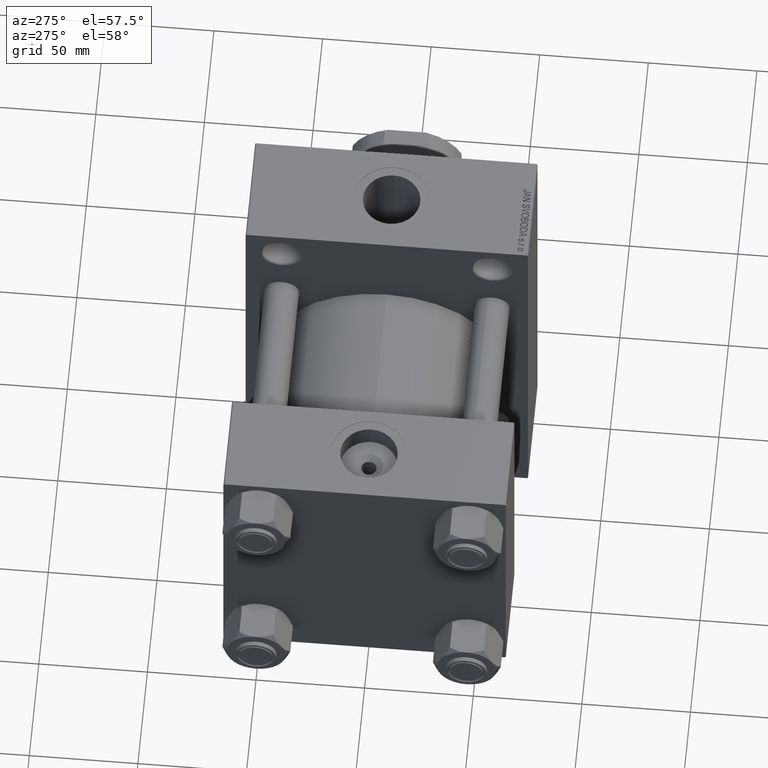
[diagram: clean part render]
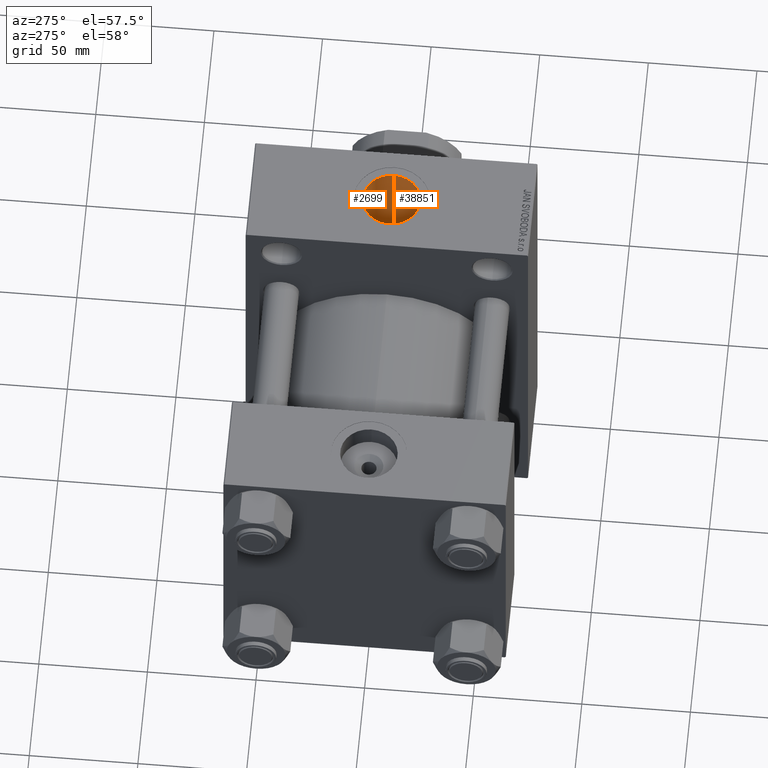
[diagram: same view with one multi-face feature highlighted, each face labeled with its STEP entity id]
A machine part, auxiliary view. The highlighted faces form ONE feature: a constant-radius fillet chain: 2 tangent blend faces with common blend radius 13.22 mm. The faces share edges in the B-rep.
Their STEP definitions:
[1] entity #2699 (Cylinder):
#408 = ORIENTED_EDGE ( 'NONE', *, *, #47506, .F. ) ;
#657 = AXIS2_PLACEMENT_3D ( 'NONE', #33542, #19065, #29922 ) ;
#1185 = EDGE_CURVE ( 'NONE', #42213, #16137, #18667, .T. ) ;
#1547 = DIRECTION ( 'NONE',  ( 0.000000000000000000, 0.000000000000000000, -1.000000000000000000 ) ) ;
#2699 = ADVANCED_FACE ( 'NONE', ( #29906 ), #41729, .F. ) ;
#2850 = VECTOR ( 'NONE', #21337, 1000.000000000000000 ) ;
#3137 = VERTEX_POINT ( 'NONE', #45951 ) ;
#3337 = CARTESIAN_POINT ( 'NONE',  ( 134.4737087384339986, 10.88020985411995767, 36.41044846182738581 ) ) ;
#3481 = CARTESIAN_POINT ( 'NONE',  ( 155.2199999999999704, 1.618983068472802926E-15, 94.79999999999996874 ) ) ;
#5032 = DIRECTION ( 'NONE',  ( -1.000000000000000000, 0.000000000000000000, 0.000000000000000000 ) ) ;
#5071 = ORIENTED_EDGE ( 'NONE', *, *, #1185, .T. ) ;
#5685 = CARTESIAN_POINT ( 'NONE',  ( 150.9292914793963973, 9.754948885942500425, 41.62290027704880657 ) ) ;
#6018 = CARTESIAN_POINT ( 'NONE',  ( 129.3778971728957856, 4.062892629112896614, 37.79548799711346874 ) ) ;
#6159 = VERTEX_POINT ( 'NONE', #34579 ) ;
#6484 = CARTESIAN_POINT ( 'NONE',  ( 140.1279962358461546, 13.09681056689220569, 35.67188185037126402 ) ) ;
#6659 = AXIS2_PLACEMENT_3D ( 'NONE', #15902, #8433, #5032 ) ;
#7498 = EDGE_CURVE ( 'NONE', #6159, #3137, #46190, .T. ) ;
#8433 = DIRECTION ( 'NONE',  ( 0.000000000000000000, 0.000000000000000000, -1.000000000000000000 ) ) ;
#9273 = ORIENTED_EDGE ( 'NONE', *, *, #25704, .T. ) ;
#9314 = CARTESIAN_POINT ( 'NONE',  ( 148.9652939437245038, 11.25862793121221017, 41.24295429618411646 ) ) ;
#10118 = CARTESIAN_POINT ( 'NONE',  ( 138.6161393418148293, 12.82059544320183164, 35.77248578963132530 ) ) ;
#10354 = CARTESIAN_POINT ( 'NONE',  ( 143.7262910150043353, 13.11687709635734578, 35.66449319161085185 ) ) ;
#10494 = CARTESIAN_POINT ( 'NONE',  ( 155.2199999999999704, 5.235365066362932155E-15, 42.75000000000000000 ) ) ;
#10587 = CARTESIAN_POINT ( 'NONE',  ( 129.7276034401946561, 5.021107990086661310, 37.67826336039709645 ) ) ;
#10650 = VECTOR ( 'NONE', #1547, 1000.000000000000000 ) ;
#10886 = EDGE_CURVE ( 'NONE', #6159, #14940, #46499, .T. ) ;
#11425 = VECTOR ( 'NONE', #40182, 1000.000000000000000 ) ;
#12936 = CARTESIAN_POINT ( 'NONE',  ( 147.0879043388672471, 12.22198265844279952, 40.96689205292911140 ) ) ;
#13497 = CARTESIAN_POINT ( 'NONE',  ( 131.5365498440031331, 8.095730104901400992, 37.12974234449202271 ) ) ;
#13592 = CARTESIAN_POINT ( 'NONE',  ( 128.7799999999999443, 0.000000000000000000, 94.79999999999996874 ) ) ;
#13977 = CARTESIAN_POINT ( 'NONE',  ( 131.2346256052195201, 7.689782515989664446, 37.21631209127710349 ) ) ;
#14125 = CARTESIAN_POINT ( 'NONE',  ( 153.3681678082568851, 6.757087634520164698, 42.21369697903652707 ) ) ;
#14128 = CARTESIAN_POINT ( 'NONE',  ( 155.2199999999999704, 1.618983068472802532E-15, 117.7999999999999545 ) ) ;
#14447 = CARTESIAN_POINT ( 'NONE',  ( 143.2169889944972567, 13.17384767058950779, 35.64338070116271240 ) ) ;
#14940 = VERTEX_POINT ( 'NONE', #44027 ) ;
#15902 = CARTESIAN_POINT ( 'NONE',  ( 141.9999999999999716, 0.000000000000000000, 117.7999999999999545 ) ) ;
#16137 = VERTEX_POINT ( 'NONE', #38928 ) ;
#17117 = CARTESIAN_POINT ( 'NONE',  ( 140.6429904835856917, 13.16039151796706719, 35.64835659901556397 ) ) ;
#17589 = CARTESIAN_POINT ( 'NONE',  ( 137.6411868225753494, 12.52307552529215151, 35.87982703132361451 ) ) ;
#17741 = CARTESIAN_POINT ( 'NONE',  ( 154.0344437705743417, 5.516867045286189430, 42.39720841868734169 ) ) ;
#18055 = CARTESIAN_POINT ( 'NONE',  ( 128.8096871343878718, 1.024765291550090662, 37.98964051294834832 ) ) ;
#18667 = LINE ( 'NONE', #37006, #2850 ) ;
#19065 = DIRECTION ( 'NONE',  ( -0.000000000000000000, -0.000000000000000000, -1.000000000000000000 ) ) ;
#19243 = ORIENTED_EDGE ( 'NONE', *, *, #7498, .F. ) ;
#20406 = CARTESIAN_POINT ( 'NONE',  ( 151.6858958810278750, 9.024595134817783304, 41.78957529832796780 ) ) ;
#21202 = CARTESIAN_POINT ( 'NONE',  ( 133.6646875080168400, 10.27358711865540997, 36.58624237847440241 ) ) ;
#21337 = DIRECTION ( 'NONE',  ( 0.000000000000000000, 0.000000000000000000, -1.000000000000000000 ) ) ;
#21354 = CARTESIAN_POINT ( 'NONE',  ( 154.9920876238891481, 2.469797748352711597, 42.68003640910877294 ) ) ;
#21446 = CARTESIAN_POINT ( 'NONE',  ( 128.9296438586279976, 2.049460351701848371, 37.94815730009316468 ) ) ;
#21604 = LINE ( 'NONE', #14128, #11425 ) ;
#21683 = CARTESIAN_POINT ( 'NONE',  ( 136.2275989359077926, 11.90429981927679925, 36.08787882260792657 ) ) ;
#22376 = EDGE_CURVE ( 'NONE', #22396, #14940, #21604, .T. ) ;
#22396 = VERTEX_POINT ( 'NONE', #3481 ) ;
#22735 = EDGE_LOOP ( 'NONE', ( #46233, #408, #5071, #9273, #19243, #43387 ) ) ;
#24038 = CARTESIAN_POINT ( 'NONE',  ( 149.8392309499369333, 10.65085741936020902, 41.40248309854266040 ) ) ;
#24832 = CARTESIAN_POINT ( 'NONE',  ( 128.7799999999999727, 0.5123942091390777387, 38.00000000000000711 ) ) ;
#25064 = CARTESIAN_POINT ( 'NONE',  ( 144.7394249595122631, 12.94326451559380331, 35.72786647778972480 ) ) ;
#25304 = CARTESIAN_POINT ( 'NONE',  ( 130.6766881679797336, 6.841684745575792093, 37.38151937335765496 ) ) ;
#25704 = EDGE_CURVE ( 'NONE', #16137, #3137, #41481, .T. ) ;
#27657 = CARTESIAN_POINT ( 'NONE',  ( 148.3566742675306500, 11.61276551564071902, 41.14373320031093328 ) ) ;
#28207 = CARTESIAN_POINT ( 'NONE',  ( 129.0207089073833799, 2.563288280031346122, 37.91676483506162754 ) ) ;
#28456 = CARTESIAN_POINT ( 'NONE',  ( 132.1862536335408720, 8.872148406854307723, 36.95190922194040439 ) ) ;
#28681 = CARTESIAN_POINT ( 'NONE',  ( 134.8947888654770679, 11.15982616624254398, 36.32533863211518366 ) ) ;
#28824 = CARTESIAN_POINT ( 'NONE',  ( 154.6496243838042233, 3.857681275829317968, 42.57693607211754738 ) ) ;
#29161 = CARTESIAN_POINT ( 'NONE',  ( 145.7399999999999807, 12.67993690836039455, 35.82204907595320265 ) ) ;
#29314 = CARTESIAN_POINT ( 'NONE',  ( 154.7498696806300700, 3.512400709947654853, 42.60688462453908443 ) ) ;
#29906 = FACE_OUTER_BOUND ( 'NONE', #22735, .T. ) ;
#29922 = DIRECTION ( 'NONE',  ( 1.000000000000000000, 0.000000000000000000, 0.000000000000000000 ) ) ;
#31271 = CARTESIAN_POINT ( 'NONE',  ( 145.7399999999999807, 12.67993690836039455, 40.82623788692756506 ) ) ;
#32320 = CARTESIAN_POINT ( 'NONE',  ( 141.6781624700284397, 13.22625420661950812, 35.62397272594166253 ) ) ;
#33542 = CARTESIAN_POINT ( 'NONE',  ( 141.9999999999999716, 0.000000000000000000, 94.79999999999996874 ) ) ;
#34579 = CARTESIAN_POINT ( 'NONE',  ( 145.7399999999999807, 12.67993690836039455, 40.82623788692756506 ) ) ;
#35071 = CARTESIAN_POINT ( 'NONE',  ( 145.7399999999999807, 12.67993690836039455, 117.7999999999999545 ) ) ;
#35131 = CARTESIAN_POINT ( 'NONE',  ( 152.1508856579517044, 8.498775455946677937, 41.90066282866281000 ) ) ;
#35923 = CARTESIAN_POINT ( 'NONE',  ( 128.7799999999999443, 4.670198144118042837E-15, 38.00000000000000000 ) ) ;
#36550 = CARTESIAN_POINT ( 'NONE',  ( 153.5441554628929453, 6.451719876449954150, 42.26153051605047040 ) ) ;
#37006 = CARTESIAN_POINT ( 'NONE',  ( 128.7799999999999443, 0.000000000000000000, 117.7999999999999545 ) ) ;
#38762 = CARTESIAN_POINT ( 'NONE',  ( 150.1227174788365915, 10.43618952212770878, 41.45722565518244807 ) ) ;
#38928 = CARTESIAN_POINT ( 'NONE',  ( 128.7799999999999443, 4.670198144118042837E-15, 38.00000000000000000 ) ) ;
#39558 = CARTESIAN_POINT ( 'NONE',  ( 130.4196655872703730, 6.397496821543482426, 37.46048315550975616 ) ) ;
#39784 = CARTESIAN_POINT ( 'NONE',  ( 145.2465992284542438, 12.82546751304065857, 35.77053558263883559 ) ) ;
#39945 = CARTESIAN_POINT ( 'NONE',  ( 152.7881170177278420, 7.649199120474212243, 42.06109021706770790 ) ) ;
#40032 = CARTESIAN_POINT ( 'NONE',  ( 133.2767444913754957, 9.946585948839686608, 36.67693463411972488 ) ) ;
#40182 = DIRECTION ( 'NONE',  ( 0.000000000000000000, 0.000000000000000000, -1.000000000000000000 ) ) ;
#41481 = B_SPLINE_CURVE_WITH_KNOTS ( 'NONE', 3,
 ( #35923, #24832, #18055, #21446, #28207, #6018, #10587, #39558, #25304, #13977, #13497, #28456, #43898, #40032, #21202, #3337, #28681, #43190, #21683, #17589, #10118, #6484, #17117, #32320, #43419, #14447, #10354, #25064, #39784, #29161 ),
 .UNSPECIFIED., .F., .F.,
 ( 4, 2, 2, 2, 2, 2, 2, 2, 2, 2, 2, 2, 2, 2, 4 ),
 ( 0.04166013637941434755, 0.04319771166362023490, 0.04473528694782612225, 0.04781043751623789695, 0.04934801280044379124, 0.05088558808464967859, 0.05242316336885556594, 0.05396073865306146022, 0.05549831393726734757, 0.05703588922147323492, 0.06011103978988502350, 0.06164861507409091085, 0.06318619035829679820, 0.06472376564250269249, 0.06626134092670858677 ),
 .UNSPECIFIED. ) ;
#41729 = CYLINDRICAL_SURFACE ( 'NONE', #6659, 13.22000000000000952 ) ;
#42213 = VERTEX_POINT ( 'NONE', #13592 ) ;
#43190 = CARTESIAN_POINT ( 'NONE',  ( 135.7708974169248677, 11.67150488739251024, 36.16418007451797223 ) ) ;
#43387 = ORIENTED_EDGE ( 'NONE', *, *, #10886, .T. ) ;
#43419 = CARTESIAN_POINT ( 'NONE',  ( 142.1929245059119467, 13.22853373566559654, 35.62312093936006363 ) ) ;
#43560 = CARTESIAN_POINT ( 'NONE',  ( 154.9210219195441027, 2.818391061395469244, 42.65841356615450053 ) ) ;
#43898 = CARTESIAN_POINT ( 'NONE',  ( 132.5346530381057732, 9.243211865870184951, 36.86048209934024555 ) ) ;
#44027 = CARTESIAN_POINT ( 'NONE',  ( 155.2199999999999704, 5.235365066362932155E-15, 42.75000000000000000 ) ) ;
#44044 = CARTESIAN_POINT ( 'NONE',  ( 155.1627215507658093, 1.419340817186896642, 42.73218467206118021 ) ) ;
#45951 = CARTESIAN_POINT ( 'NONE',  ( 145.7399999999999807, 12.67993690836039455, 35.82204907595320265 ) ) ;
#46006 = CARTESIAN_POINT ( 'NONE',  ( 146.4277657072452428, 12.47707755947820374, 40.88924255936937868 ) ) ;
#46190 = LINE ( 'NONE', #35071, #10650 ) ;
#46233 = ORIENTED_EDGE ( 'NONE', *, *, #22376, .F. ) ;
#46250 = CARTESIAN_POINT ( 'NONE',  ( 150.6671844818738180, 9.988618730331612738, 41.56733220482829694 ) ) ;
#46499 = B_SPLINE_CURVE_WITH_KNOTS ( 'NONE', 3,
 ( #31271, #46006, #12936, #27657, #9314, #24038, #38762, #46250, #5685, #20406, #35131, #39945, #47419, #14125, #36550, #17741, #47665, #28824, #29314, #43560, #21354, #44044, #47191, #10494 ),
 .UNSPECIFIED., .F., .F.,
 ( 4, 2, 2, 2, 2, 2, 2, 2, 2, 2, 2, 4 ),
 ( 0.000000000000000000, 0.002127714298774668368, 0.004255428597549336736, 0.005319285746936637527, 0.006383142896323938317, 0.008510857195098543368, 0.009574714344485873649, 0.01063857149387320566, 0.01276628579264786796, 0.01383014294203519998, 0.01489400009142253199, 0.01702171439019718388 ),
 .UNSPECIFIED. ) ;
#46907 = CIRCLE ( 'NONE', #657, 13.22000000000000952 ) ;
#47191 = CARTESIAN_POINT ( 'NONE',  ( 155.2199999999999989, 0.7128280605864664166, 42.75000000000000000 ) ) ;
#47419 = CARTESIAN_POINT ( 'NONE',  ( 152.9906410470005085, 7.355221410213304445, 42.11359832578121853 ) ) ;
#47506 = EDGE_CURVE ( 'NONE', #42213, #22396, #46907, .T. ) ;
#47665 = CARTESIAN_POINT ( 'NONE',  ( 154.3113288498327051, 4.868756459318224650, 42.47724650916214273 ) ) ;
[2] entity #38851 (Cylinder):
#521 = CARTESIAN_POINT ( 'NONE',  ( 138.6246063200816820, -12.79204261344252558, 35.78252008287734753 ) ) ;
#1004 = CARTESIAN_POINT ( 'NONE',  ( 135.7505307718750203, -11.69499031497651487, 36.15822628461805266 ) ) ;
#1185 = EDGE_CURVE ( 'NONE', #42213, #16137, #18667, .T. ) ;
#1478 = CARTESIAN_POINT ( 'NONE',  ( 146.4263400167578766, -12.47749807280259127, 40.88911195506444329 ) ) ;
#1709 = CARTESIAN_POINT ( 'NONE',  ( 155.1474619350561568, -1.428652546488348607, 42.72761509841833316 ) ) ;
#1939 = CARTESIAN_POINT ( 'NONE',  ( 154.9325276923766239, -2.832175481623198987, 42.66183901135579504 ) ) ;
#2850 = VECTOR ( 'NONE', #21337, 1000.000000000000000 ) ;
#3058 = B_SPLINE_CURVE_WITH_KNOTS ( 'NONE', 3,
 ( #17916, #7056, #21775, #18148, #29262, #46905, #47607, #14549, #43990, #10923, #25628, #22726, #521, #36971, #11394, #1004, #15734, #36727, #29719, #30442, #37443, #29973, #11633, #44457, #45176, #37695, #19115, #30212, #4381, #26834, #8249, #44709 ),
 .UNSPECIFIED., .F., .F.,
 ( 4, 2, 2, 2, 2, 2, 2, 2, 2, 2, 2, 2, 2, 2, 2, 4 ),
 ( 0.01705422015311720482, 0.01859208991726086016, 0.02012995968140451203, 0.02166782944554816737, 0.02243676432761999504, 0.02320569920969182270, 0.02474356897383539478, 0.02628143873797896685, 0.02935717826626604160, 0.03089504803040957898, 0.03243291779455311635, 0.03397078755869664679, 0.03550865732284018417, 0.03858439685112725892, 0.04012226661527080324, 0.04166013637941434755 ),
 .UNSPECIFIED. ) ;
#3481 = CARTESIAN_POINT ( 'NONE',  ( 155.2199999999999704, 1.618983068472802926E-15, 94.79999999999996874 ) ) ;
#4352 = EDGE_LOOP ( 'NONE', ( #9287, #12001, #8721, #43542, #35347, #5948 ) ) ;
#4381 = CARTESIAN_POINT ( 'NONE',  ( 128.9297342754259148, -2.050085931408936357, 37.94812610307854328 ) ) ;
#4847 = CARTESIAN_POINT ( 'NONE',  ( 148.3650373963749018, -11.60846388096255133, 41.14496498017211934 ) ) ;
#5328 = CARTESIAN_POINT ( 'NONE',  ( 151.6852196200359231, -9.025364359016295523, 41.78941323369598848 ) ) ;
#5948 = ORIENTED_EDGE ( 'NONE', *, *, #1185, .F. ) ;
#6541 = AXIS2_PLACEMENT_3D ( 'NONE', #27829, #9499, #43274 ) ;
#6819 = AXIS2_PLACEMENT_3D ( 'NONE', #43562, #6881, #32465 ) ;
#6881 = DIRECTION ( 'NONE',  ( -0.000000000000000000, -0.000000000000000000, -1.000000000000000000 ) ) ;
#7056 = CARTESIAN_POINT ( 'NONE',  ( 145.2468141908903192, -12.82540410897825467, 35.77055802578577470 ) ) ;
#8249 = CARTESIAN_POINT ( 'NONE',  ( 128.7799999999999727, -0.5124923440507884731, 38.00000000000000711 ) ) ;
#8261 = B_SPLINE_CURVE_WITH_KNOTS ( 'NONE', 3,
 ( #38866, #19330, #23430, #1709, #35006, #1939, #12089, #12337, #37908, #8945, #30672, #12568, #27767, #26816, #5328, #16431, #16662, #31141, #4847, #15952, #1478, #34055 ),
 .UNSPECIFIED., .F., .F.,
 ( 4, 2, 2, 2, 2, 2, 2, 2, 2, 2, 4 ),
 ( 0.01702171439019718388, 0.01808348912762104688, 0.01914526386504491334, 0.02126881333989263934, 0.02233058807731650580, 0.02339236281474037227, 0.02551591228958806357, 0.02763946176443575486, 0.02976301123928344616, 0.03188656071413113746, 0.03401011018897882876 ),
 .UNSPECIFIED. ) ;
#8721 = ORIENTED_EDGE ( 'NONE', *, *, #13552, .T. ) ;
#8945 = CARTESIAN_POINT ( 'NONE',  ( 154.0198534454124228, -5.515287097378185344, 42.39402133541481277 ) ) ;
#9287 = ORIENTED_EDGE ( 'NONE', *, *, #19495, .F. ) ;
#9499 = DIRECTION ( 'NONE',  ( 0.000000000000000000, 0.000000000000000000, -1.000000000000000000 ) ) ;
#10923 = CARTESIAN_POINT ( 'NONE',  ( 140.1333413548219937, -13.09010442784178530, 35.67422447380825190 ) ) ;
#11394 = CARTESIAN_POINT ( 'NONE',  ( 137.1651837322210952, -12.31495098171283864, 35.94981938685184986 ) ) ;
#11425 = VECTOR ( 'NONE', #40182, 1000.000000000000000 ) ;
#11633 = CARTESIAN_POINT ( 'NONE',  ( 131.2318264884937946, -7.685914564966224383, 37.21712017253235416 ) ) ;
#12001 = ORIENTED_EDGE ( 'NONE', *, *, #22376, .T. ) ;
#12089 = CARTESIAN_POINT ( 'NONE',  ( 154.7629584476919433, -3.518170577613226602, 42.61034067485235255 ) ) ;
#12337 = CARTESIAN_POINT ( 'NONE',  ( 154.4260137807291926, -4.526382623994721577, 42.51103856060492348 ) ) ;
#12568 = CARTESIAN_POINT ( 'NONE',  ( 153.3763861193419586, -6.770732795594998521, 42.21512903942316797 ) ) ;
#12722 = CARTESIAN_POINT ( 'NONE',  ( 145.7399999999999807, -12.67993690836039455, 117.7999999999999545 ) ) ;
#13552 = EDGE_CURVE ( 'NONE', #14940, #15584, #8261, .T. ) ;
#13592 = CARTESIAN_POINT ( 'NONE',  ( 128.7799999999999443, 0.000000000000000000, 94.79999999999996874 ) ) ;
#14128 = CARTESIAN_POINT ( 'NONE',  ( 155.2199999999999704, 1.618983068472802532E-15, 117.7999999999999545 ) ) ;
#14549 = CARTESIAN_POINT ( 'NONE',  ( 140.9061800254221453, -13.17721531947969282, 35.64212817518317422 ) ) ;
#14703 = CARTESIAN_POINT ( 'NONE',  ( 145.7399999999999807, -12.67993690836039455, 40.82623788692756506 ) ) ;
#14940 = VERTEX_POINT ( 'NONE', #44027 ) ;
#15584 = VERTEX_POINT ( 'NONE', #14703 ) ;
#15734 = CARTESIAN_POINT ( 'NONE',  ( 134.8755652418720672, -11.18215487821178122, 36.32301804256496069 ) ) ;
#15952 = CARTESIAN_POINT ( 'NONE',  ( 147.0881855045064697, -12.22213168823645546, 40.96686556097021281 ) ) ;
#16137 = VERTEX_POINT ( 'NONE', #38928 ) ;
#16431 = CARTESIAN_POINT ( 'NONE',  ( 150.6754924569602849, -9.999825575006550338, 41.56700312386077201 ) ) ;
#16662 = CARTESIAN_POINT ( 'NONE',  ( 150.1351602650894961, -10.44419664956252625, 41.45664902860858092 ) ) ;
#17916 = CARTESIAN_POINT ( 'NONE',  ( 145.7399999999999523, -12.67993690836040521, 35.82204907595320265 ) ) ;
#18148 = CARTESIAN_POINT ( 'NONE',  ( 143.7273020000270094, -13.11672920664988062, 35.66454747468239361 ) ) ;
#18667 = LINE ( 'NONE', #37006, #2850 ) ;
#19115 = CARTESIAN_POINT ( 'NONE',  ( 129.3777378405983427, -4.062146891642634650, 37.79554239058286669 ) ) ;
#19330 = CARTESIAN_POINT ( 'NONE',  ( 155.2199999999999704, -0.3557163794469088702, 42.75000000000000711 ) ) ;
#19495 = EDGE_CURVE ( 'NONE', #22396, #42213, #34485, .T. ) ;
#20576 = VERTEX_POINT ( 'NONE', #28750 ) ;
#21337 = DIRECTION ( 'NONE',  ( 0.000000000000000000, 0.000000000000000000, -1.000000000000000000 ) ) ;
#21604 = LINE ( 'NONE', #14128, #11425 ) ;
#21775 = CARTESIAN_POINT ( 'NONE',  ( 144.7396828457914637, -12.94319493727708803, 35.72789157605163268 ) ) ;
#22376 = EDGE_CURVE ( 'NONE', #22396, #14940, #21604, .T. ) ;
#22396 = VERTEX_POINT ( 'NONE', #3481 ) ;
#22726 = CARTESIAN_POINT ( 'NONE',  ( 139.1213861529210192, -12.91299555985394143, 35.73883275200963539 ) ) ;
#23430 = CARTESIAN_POINT ( 'NONE',  ( 155.2055487969409739, -0.7143419376948666466, 42.74552439370961565 ) ) ;
#25628 = CARTESIAN_POINT ( 'NONE',  ( 139.8788164647795327, -13.05123934391905038, 35.68847932861486072 ) ) ;
#26816 = CARTESIAN_POINT ( 'NONE',  ( 152.1575723231069617, -8.490431257591517067, 41.90230994099357531 ) ) ;
#26834 = CARTESIAN_POINT ( 'NONE',  ( 128.8096983583113513, -1.025007823581733923, 37.98963656081625828 ) ) ;
#27767 = CARTESIAN_POINT ( 'NONE',  ( 153.0015928053664425, -7.364010740346975226, 42.11487085516267115 ) ) ;
#27829 = CARTESIAN_POINT ( 'NONE',  ( 141.9999999999999716, 0.000000000000000000, 117.7999999999999545 ) ) ;
#28750 = CARTESIAN_POINT ( 'NONE',  ( 145.7399999999999523, -12.67993690836040521, 35.82204907595320265 ) ) ;
#29262 = CARTESIAN_POINT ( 'NONE',  ( 143.2184681352996449, -13.17368919937494809, 35.64343931497820250 ) ) ;
#29719 = CARTESIAN_POINT ( 'NONE',  ( 133.2661982700706176, -9.937219993078540980, 36.67946192170870034 ) ) ;
#29973 = CARTESIAN_POINT ( 'NONE',  ( 131.5335653968728025, -8.091804117011163200, 37.13059057153028419 ) ) ;
#30212 = CARTESIAN_POINT ( 'NONE',  ( 129.0208682072190243, -2.563995466671134871, 37.91671060019312023 ) ) ;
#30442 = CARTESIAN_POINT ( 'NONE',  ( 132.5277665390035793, -9.236039579220999940, 36.86226852688236022 ) ) ;
#30672 = CARTESIAN_POINT ( 'NONE',  ( 153.8678695714943672, -5.834913689629364519, 42.35109966501106982 ) ) ;
#31141 = CARTESIAN_POINT ( 'NONE',  ( 148.9822741085590678, -11.24766306689395279, 41.24590971077731894 ) ) ;
#31924 = FACE_OUTER_BOUND ( 'NONE', #4352, .T. ) ;
#32465 = DIRECTION ( 'NONE',  ( 1.000000000000000000, 0.000000000000000000, 0.000000000000000000 ) ) ;
#33872 = EDGE_CURVE ( 'NONE', #20576, #15584, #34453, .T. ) ;
#34055 = CARTESIAN_POINT ( 'NONE',  ( 145.7399999999999807, -12.67993690836039455, 40.82623788692756506 ) ) ;
#34453 = LINE ( 'NONE', #12722, #45643 ) ;
#34485 = CIRCLE ( 'NONE', #6819, 13.22000000000000952 ) ;
#35006 = CARTESIAN_POINT ( 'NONE',  ( 155.1041229325395534, -1.782171368608850948, 42.71427362908443115 ) ) ;
#35347 = ORIENTED_EDGE ( 'NONE', *, *, #46380, .T. ) ;
#36727 = CARTESIAN_POINT ( 'NONE',  ( 133.6581883585389505, -10.26839900491649793, 36.58771021444267291 ) ) ;
#36971 = CARTESIAN_POINT ( 'NONE',  ( 137.6470234235080738, -12.49324744184131752, 35.88793482582378402 ) ) ;
#37006 = CARTESIAN_POINT ( 'NONE',  ( 128.7799999999999443, 0.000000000000000000, 117.7999999999999545 ) ) ;
#37443 = CARTESIAN_POINT ( 'NONE',  ( 132.1815366388300390, -8.866866661621779500, 36.95316935884812892 ) ) ;
#37695 = CARTESIAN_POINT ( 'NONE',  ( 129.7266675305089620, -5.017990412168547465, 37.67859395355884544 ) ) ;
#37908 = CARTESIAN_POINT ( 'NONE',  ( 154.2993960643596552, -4.860054019011692539, 42.47412520213218556 ) ) ;
#38851 = ADVANCED_FACE ( 'NONE', ( #31924 ), #46189, .F. ) ;
#38866 = CARTESIAN_POINT ( 'NONE',  ( 155.2199999999999704, 5.235365066362932155E-15, 42.75000000000000000 ) ) ;
#38928 = CARTESIAN_POINT ( 'NONE',  ( 128.7799999999999443, 4.670198144118042837E-15, 38.00000000000000000 ) ) ;
#40182 = DIRECTION ( 'NONE',  ( 0.000000000000000000, 0.000000000000000000, -1.000000000000000000 ) ) ;
#41457 = DIRECTION ( 'NONE',  ( -0.000000000000000000, -0.000000000000000000, 1.000000000000000000 ) ) ;
#42213 = VERTEX_POINT ( 'NONE', #13592 ) ;
#43274 = DIRECTION ( 'NONE',  ( -1.000000000000000000, 0.000000000000000000, 0.000000000000000000 ) ) ;
#43542 = ORIENTED_EDGE ( 'NONE', *, *, #33872, .F. ) ;
#43562 = CARTESIAN_POINT ( 'NONE',  ( 141.9999999999999716, 0.000000000000000000, 94.79999999999996874 ) ) ;
#43990 = CARTESIAN_POINT ( 'NONE',  ( 140.6465934105188467, -13.15308097112496455, 35.65105309393388922 ) ) ;
#44027 = CARTESIAN_POINT ( 'NONE',  ( 155.2199999999999704, 5.235365066362932155E-15, 42.75000000000000000 ) ) ;
#44457 = CARTESIAN_POINT ( 'NONE',  ( 130.6733780949267896, -6.836262114151405278, 37.38252047338824724 ) ) ;
#44709 = CARTESIAN_POINT ( 'NONE',  ( 128.7799999999999443, 4.670198144118042837E-15, 38.00000000000000000 ) ) ;
#45176 = CARTESIAN_POINT ( 'NONE',  ( 130.4152396125650171, -6.389315783911333035, 37.46185808708513321 ) ) ;
#45643 = VECTOR ( 'NONE', #41457, 1000.000000000000000 ) ;
#46189 = CYLINDRICAL_SURFACE ( 'NONE', #6541, 13.22000000000000952 ) ;
#46380 = EDGE_CURVE ( 'NONE', #20576, #16137, #3058, .T. ) ;
#46905 = CARTESIAN_POINT ( 'NONE',  ( 142.1955284908291333, -13.22847384726382458, 35.62314322171079084 ) ) ;
#47607 = CARTESIAN_POINT ( 'NONE',  ( 141.6814230918164128, -13.22630302104233024, 35.62395438639611456 ) ) ;